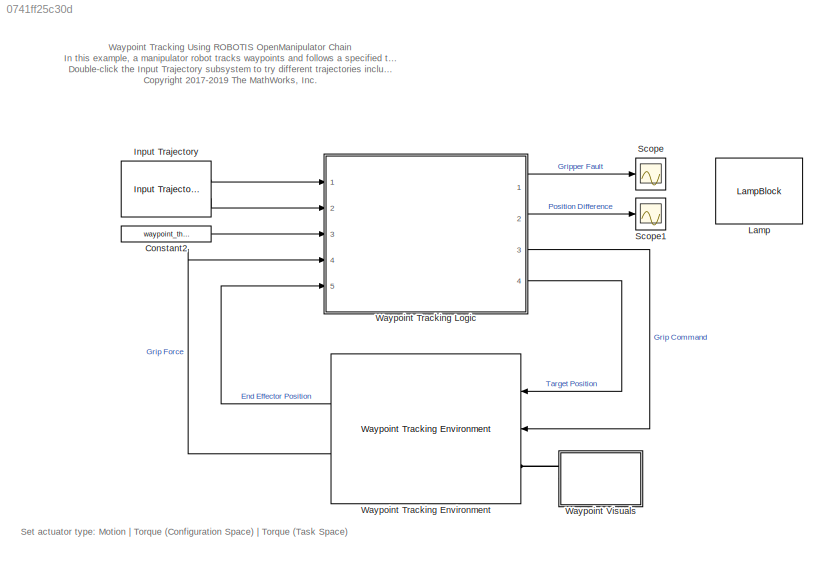
MODEL slx_0741ff25c30d
KIND model
CONFIG AbsTol = auto
CONFIG EnableMultiTasking = off
CONFIG FixedStep = auto
CONFIG MaxStep = auto
CONFIG MinStep = auto
CONFIG PreLoadFcn = openManipulatorParameters;
CONFIG RelTol = 1e-3
CONFIG SampleTimeConstraint = Unconstrained
CONFIG Solver = VariableStepAuto
CONFIG SolverName = VariableStepAuto
CONFIG StartTime = 0.0
CONFIG StopTime = 12
BLOCK [Constant] Constant2
  Value = waypoint_threshold
BLOCK [Reference] Input Trajectory  REF=OpenManipulatorLib/Input Trajectory
  Ports = [0, 2]
  SourceBlock = OpenManipulatorLib/Input Trajectory
  SourceType = Input Trajectory
BLOCK [LampBlock] Lamp
BLOCK [Scope] Scope
  Floating = off
  NumInputPorts = 1
  Ports = [1]
  ScopeSpecificationString = Simulink.scopes.TimeScopeBlockCfg('CurrentConfiguration', extmgr.ConfigurationSet(extmgr.Configuration('Core','General UI',true),extmgr.Configuration('Core','Source UI',true),extmgr.Configuration('Sources','WiredSimulink',true,'DataLoggingVariableName','ScopeData1'),extmgr.Configuration('Visuals','Time Domain',true,'SerializedDisplays',{struct('MinYLimReal','-1.00000','MaxYLimReal','1.00000','YLab...<+1445ch>
BLOCK [Scope] Scope1
  Floating = off
  NumInputPorts = 1
  Ports = [1]
  ScopeSpecificationString = Simulink.scopes.TimeScopeBlockCfg('CurrentConfiguration', extmgr.ConfigurationSet(extmgr.Configuration('Core','General UI',true),extmgr.Configuration('Core','Source UI',true),extmgr.Configuration('Sources','WiredSimulink',true,'DataLoggingVariableName','ScopeData2'),extmgr.Configuration('Visuals','Time Domain',true,'SerializedDisplays',{struct('MinYLimReal','-0.04606','MaxYLimReal','0.41532','YLab...<+1501ch>
BLOCK [Reference] Waypoint Tracking Environment   REF=OpenManipulatorLib/Waypoint Tracking Environment 
  Ports = [2, 2, 0, 0, 0, 1]
  SourceBlock = OpenManipulatorLib/Waypoint Tracking Environment
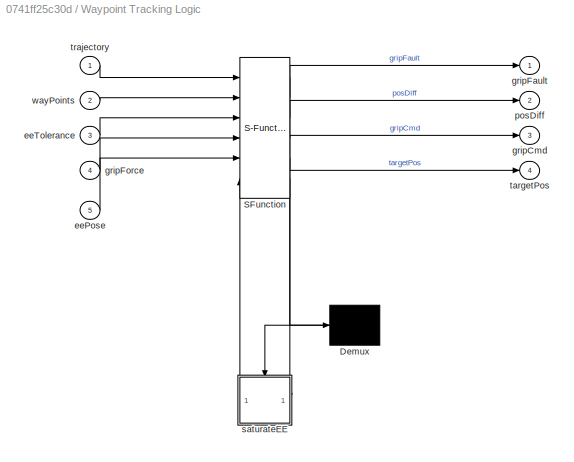
BLOCK [SubSystem] Waypoint Tracking Logic
  ErrorFcn = Stateflow.Translate.translate
  PermitHierarchicalResolution = ExplicitOnly
  Ports = [5, 4]
  RequestExecContextInheritance = off
  SFBlockType = Chart
  TreatAsAtomicUnit = on
BLOCK [Demux] Waypoint Tracking Logic/ Demux 
  Outputs = 1
  Ports = [1, 1]
BLOCK [S-Function] Waypoint Tracking Logic/ SFunction 
  EnableBusSupport = on
  FunctionName = sf_sfun
  PortCounts = [6 6]
  Ports = [6, 6]
  SFcnIsStateOwnerBlock = off
  SFunctionDeploymentMode = off
  Tag = Stateflow S-Function 2
BLOCK [Inport] Waypoint Tracking Logic/eePose
  IconDisplay = Port number
  Port = 5
BLOCK [Inport] Waypoint Tracking Logic/eeTolerance
  IconDisplay = Port number
  Port = 3
BLOCK [Outport] Waypoint Tracking Logic/gripCmd
  IconDisplay = Port number
  Port = 3
  VectorParamsAs1DForOutWhenUnconnected = off
BLOCK [Outport] Waypoint Tracking Logic/gripFault
  IconDisplay = Port number
  VectorParamsAs1DForOutWhenUnconnected = off
BLOCK [Inport] Waypoint Tracking Logic/gripForce
  IconDisplay = Port number
  Port = 4
BLOCK [Outport] Waypoint Tracking Logic/posDiff
  IconDisplay = Port number
  Port = 2
  VectorParamsAs1DForOutWhenUnconnected = off
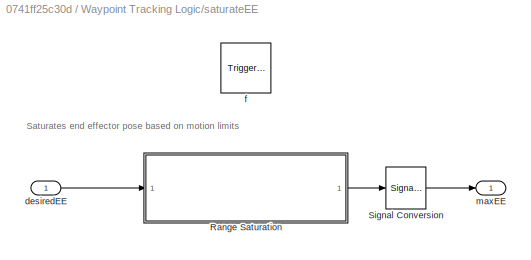
BLOCK [SubSystem] Waypoint Tracking Logic/saturateEE
  Ports = [1, 1, 0, 1]
  PreDeleteFcn = Stateflow.SLINSF.SimulinkMan.removePreDeleteFcn
  RequestExecContextInheritance = off
  UndoDeleteFcn = Stateflow.SLINSF.SimulinkMan.restorePreDeleteFcn
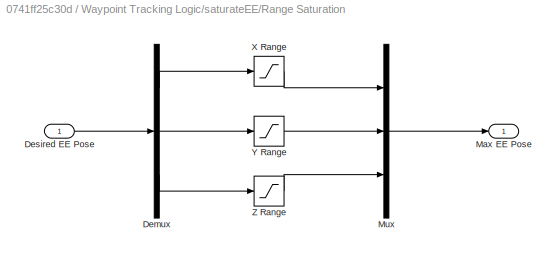
BLOCK [SubSystem] Waypoint Tracking Logic/saturateEE/Range Saturation
  Ports = [1, 1]
  RequestExecContextInheritance = off
BLOCK [Demux] Waypoint Tracking Logic/saturateEE/Range Saturation/Demux
  DisplayOption = bar
  Outputs = 3
  Ports = [1, 3]
BLOCK [Inport] Waypoint Tracking Logic/saturateEE/Range Saturation/Desired EE Pose
  IconDisplay = Port number
BLOCK [Outport] Waypoint Tracking Logic/saturateEE/Range Saturation/Max EE Pose
  IconDisplay = Port number
  VectorParamsAs1DForOutWhenUnconnected = off
BLOCK [Mux] Waypoint Tracking Logic/saturateEE/Range Saturation/Mux
  DisplayOption = bar
  Inputs = 3
  Ports = [3, 1]
BLOCK [Saturate] Waypoint Tracking Logic/saturateEE/Range Saturation/X Range
  InputPortMap = u0
  LowerLimit = xLower
  Ports = [1, 1]
  UpperLimit = xUpper
BLOCK [Saturate] Waypoint Tracking Logic/saturateEE/Range Saturation/Y Range
  InputPortMap = u0
  LowerLimit = yLower
  Ports = [1, 1]
  UpperLimit = yUpper
BLOCK [Saturate] Waypoint Tracking Logic/saturateEE/Range Saturation/Z Range
  InputPortMap = u0
  LowerLimit = zLower
  Ports = [1, 1]
  UpperLimit = zUpper
BLOCK [SignalConversion] Waypoint Tracking Logic/saturateEE/Signal Conversion
  OverrideOpt = off
BLOCK [Inport] Waypoint Tracking Logic/saturateEE/desiredEE
  IconDisplay = Port number
  OutDataTypeStr = double
  PortDimensions = 3
  SignalType = real
  VarSizeSig = No
BLOCK [TriggerPort] Waypoint Tracking Logic/saturateEE/f
  CopyFcn = Stateflow.SLINSF.SimulinkMan.removeBlockPreDeleteFcn
  Ports = []
  PreDeleteFcn = Stateflow.SLINSF.SimulinkMan.unsafePredeleteFcn
  StatesWhenEnabling = held
  TriggerType = function-call
  VariantControl = (inherit)
BLOCK [Outport] Waypoint Tracking Logic/saturateEE/maxEE
  IconDisplay = Port number
  VectorParamsAs1DForOutWhenUnconnected = off
BLOCK [Outport] Waypoint Tracking Logic/targetPos
  IconDisplay = Port number
  Port = 4
  VectorParamsAs1DForOutWhenUnconnected = off
BLOCK [Inport] Waypoint Tracking Logic/trajectory
  IconDisplay = Port number
BLOCK [Inport] Waypoint Tracking Logic/wayPoints
  IconDisplay = Port number
  Port = 2
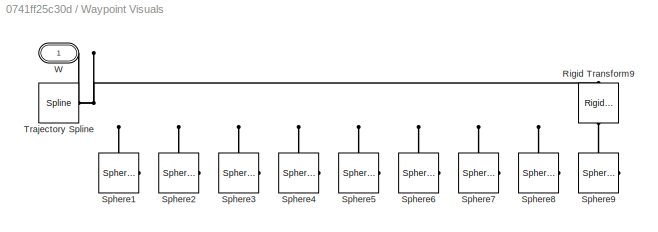
BLOCK [SubSystem] Waypoint Visuals
  CopyFcn = set_param(gcb,'LinkStatus','breakWithoutHierarchy');
  Ports = [0, 0, 0, 0, 0, 1]
  RequestExecContextInheritance = off
BLOCK [Reference] Waypoint Visuals/Rigid Transform9  REF=sm_lib/Frames and
Transforms/Rigid
Transform
  Ports = [0, 0, 0, 0, 0, 1, 1]
  SourceBlock = sm_lib/Frames and\nTransforms/Rigid\nTransform
  SourceProductBaseCode = MS
  SourceProductName = Simscape Multibody
  SourceType = Rigid\nTransform
BLOCK [Reference] Waypoint Visuals/Sphere1  REF=sm_lib/Body Elements/Spherical Solid
  Ports = [0, 0, 0, 0, 0, 0, 1]
  SourceBlock = sm_lib/Body Elements/Spherical Solid
  SourceProductBaseCode = MS
  SourceProductName = Simscape Multibody
  SourceType = Spherical Solid
BLOCK [Reference] Waypoint Visuals/Sphere2  REF=sm_lib/Body Elements/Spherical Solid
  Ports = [0, 0, 0, 0, 0, 0, 1]
  SourceBlock = sm_lib/Body Elements/Spherical Solid
  SourceProductBaseCode = MS
  SourceProductName = Simscape Multibody
  SourceType = Spherical Solid
BLOCK [Reference] Waypoint Visuals/Sphere3  REF=sm_lib/Body Elements/Spherical Solid
  Ports = [0, 0, 0, 0, 0, 0, 1]
  SourceBlock = sm_lib/Body Elements/Spherical Solid
  SourceProductBaseCode = MS
  SourceProductName = Simscape Multibody
  SourceType = Spherical Solid
BLOCK [Reference] Waypoint Visuals/Sphere4  REF=sm_lib/Body Elements/Spherical Solid
  Ports = [0, 0, 0, 0, 0, 0, 1]
  SourceBlock = sm_lib/Body Elements/Spherical Solid
  SourceProductBaseCode = MS
  SourceProductName = Simscape Multibody
  SourceType = Spherical Solid
BLOCK [Reference] Waypoint Visuals/Sphere5  REF=sm_lib/Body Elements/Spherical Solid
  Ports = [0, 0, 0, 0, 0, 0, 1]
  SourceBlock = sm_lib/Body Elements/Spherical Solid
  SourceProductBaseCode = MS
  SourceProductName = Simscape Multibody
  SourceType = Spherical Solid
BLOCK [Reference] Waypoint Visuals/Sphere6  REF=sm_lib/Body Elements/Spherical Solid
  Ports = [0, 0, 0, 0, 0, 0, 1]
  SourceBlock = sm_lib/Body Elements/Spherical Solid
  SourceProductBaseCode = MS
  SourceProductName = Simscape Multibody
  SourceType = Spherical Solid
BLOCK [Reference] Waypoint Visuals/Sphere7  REF=sm_lib/Body Elements/Spherical Solid
  Ports = [0, 0, 0, 0, 0, 0, 1]
  SourceBlock = sm_lib/Body Elements/Spherical Solid
  SourceProductBaseCode = MS
  SourceProductName = Simscape Multibody
  SourceType = Spherical Solid
BLOCK [Reference] Waypoint Visuals/Sphere8  REF=sm_lib/Body Elements/Spherical Solid
  Ports = [0, 0, 0, 0, 0, 0, 1]
  SourceBlock = sm_lib/Body Elements/Spherical Solid
  SourceProductBaseCode = MS
  SourceProductName = Simscape Multibody
  SourceType = Spherical Solid
BLOCK [Reference] Waypoint Visuals/Sphere9  REF=sm_lib/Body Elements/Spherical Solid
  Ports = [0, 0, 0, 0, 0, 0, 1]
  SourceBlock = sm_lib/Body Elements/Spherical Solid
  SourceProductBaseCode = MS
  SourceProductName = Simscape Multibody
  SourceType = Spherical Solid
BLOCK [Reference] Waypoint Visuals/Trajectory Spline  REF=sm_lib/Curves and Surfaces/Spline
  Ports = [0, 0, 0, 0, 0, 1, 1]
  SourceBlock = sm_lib/Curves and Surfaces/Spline
  SourceProductBaseCode = MS
  SourceProductName = Simscape Multibody
  SourceType = Spline
BLOCK [PMIOPort] Waypoint Visuals/W
  Side = Left
ANNOTATION (root): Waypoint Tracking Using ROBOTIS OpenManipulator Chain In this example, a manipulator robot tracks waypoints and follows a specified trajectory. Double-click the Input Trajectory subsystem to try different trajectories including gripper fault detection. <copyright redacted>
ANNOTATION (root): Set actuator type: Motion | Torque (Configuration Space) | Torque (Task Space)
ANNOTATION Waypoint Tracking Logic/saturateEE: Saturates end effector pose based on motion limits
LINE Constant2:1 -> Waypoint Tracking Logic:3
LINE Input Trajectory:1 -> Waypoint Tracking Logic:1
LINE Input Trajectory:2 -> Waypoint Tracking Logic:2
LINE Waypoint Tracking Environment :1 -> Waypoint Tracking Logic:5
LINE Waypoint Tracking Environment :2 -> Waypoint Tracking Logic:4
LINE Waypoint Tracking Logic:1 -> Scope:1
LINE Waypoint Tracking Logic:2 -> Scope1:1
LINE Waypoint Tracking Logic:3 -> Waypoint Tracking Environment :2
LINE Waypoint Tracking Logic:4 -> Waypoint Tracking Environment :1
PLINE Waypoint Tracking Environment :LConn1 -- Waypoint Visuals:LConn1
CHART Waypoint Tracking Logic states=14 transitions=19
  STATE_LABEL 'Gripper'
  STATE_LABEL 'InTransition'
  STATE_LABEL 'CloseGripper\nentry:\ncounts=0;\ngripCmd=1;\nduring:\ncounts=counts+1;\n'
  STATE_LABEL 'OpenGripper\nentry:\ncounts=0;\ngripCmd=-1;\nduring:\ncounts=counts+1;\n'
  STATE_LABEL 'GripperFault\nentry: gripFault=1;'
  STATE_LABEL '{gripFault=0;}'
  STATE_LABEL '[~detectBall(0.5)]\n{RobotMotion.GripSet}'
  STATE_LABEL '[detectBall(0.5)]\n{RobotMotion.GripSet}'
  STATE_LABEL 'SetGrip'
  STATE_LABEL '[checkGrip]'
  STATE_LABEL '[counts>=10]'
  STATE_LABEL '[counts>=10]'
  STATE_LABEL '{gripCmd=0;}'
  STATE_LABEL 'InTransition'
  STATE_LABEL 'CloseGripper\nentry:\ncounts=0;\ngripCmd=1;\nduring:\ncounts=counts+1;\n'
  STATE_LABEL 'OpenGripper\nentry:\ncounts=0;\ngripCmd=-1;\nduring:\ncounts=counts+1;\n'
  STATE_LABEL 'GripperFault\nentry: gripFault=1;'
  STATE_LABEL 'RobotMotion'
  STATE_LABEL 'StepOnTrajectory\nentry:\ncurrentState=currentState+1;'
  STATE_LABEL 'SetConfiguration\nentry,during:\ntargetPos=saturateEE(trajectory(:,currentState));\nposDiff=abs(eePose-trajectory(:,currentState));'
  STATE_LABEL 'CheckForWaypoint\nentry:Gripper.SetGrip\nif currentTarget < size(wayPoints,1)\n    currentTarget=currentTarget+1;\nend\n'
  STATE_LABEL '[checkStateTolerance]'
  STATE_LABEL '{currentState=1; \ncurrentTarget=1;}'
  STATE_LABEL '[checkWaypointTolerance]'
  STATE_LABEL 'GripSet'
  STATE_LABEL 'StepOnTrajectory\nentry:\ncurrentState=currentState+1;'
  STATE_LABEL 'SetConfiguration\nentry,during:\ntargetPos=saturateEE(trajectory(:,currentState));\nposDiff=abs(eePose-trajectory(:,currentState));'
  STATE_LABEL 'CheckForWaypoint\nentry:Gripper.SetGrip\nif currentTarget < size(wayPoints,1)\n    currentTarget=currentTarget+1;\nend\n'
  STATE_LABEL 'maxEE = saturateEE(desiredEE)'
  STATE_LABEL 'grip = checkGrip'
  STATE_LABEL 'SCRIPT:\nfunction grip = checkGrip\n% Returns the grip status (0 or 1) at the current waypoint\n\ngrip = wayPoints(currentTarget,4);\n \n'
  STATE_LABEL 'isBall = detectBall(threshold)'
  STATE_LABEL 'SCRIPT:\nfunction isBall = detectBall(threshold)\n% Checks the presence of a ball based on a minimum force threshold\n\nisBall = all(abs(gripForce)>threshold);'
  STATE_LABEL 'atState = checkStateTolerance'
  STATE_LABEL 'SCRIPT:\nfunction atState = checkStateTolerance\n% Check if a robot state has been reached within tolerance\n\nreachedPoint = all(abs(eePose-trajectory(:,currentState)) < eeTolerance);\natState = reachedPoint && currentState < size(trajectory,2);\n \n'
  STATE_LABEL 'atWaypoint = checkWaypointTolerance'
  STATE_LABEL "SCRIPT:\nfunction atWaypoint = checkWaypointTolerance\n% Checks if a waypoint has been reached within tolerance\n\nreachedWaypoint = all(abs(eePose-wayPoints(currentTarget,1:3)') < eeTolerance);\natWaypoint = reachedWaypoint && currentTarget <= size(wayPoints,1);\n \n"
